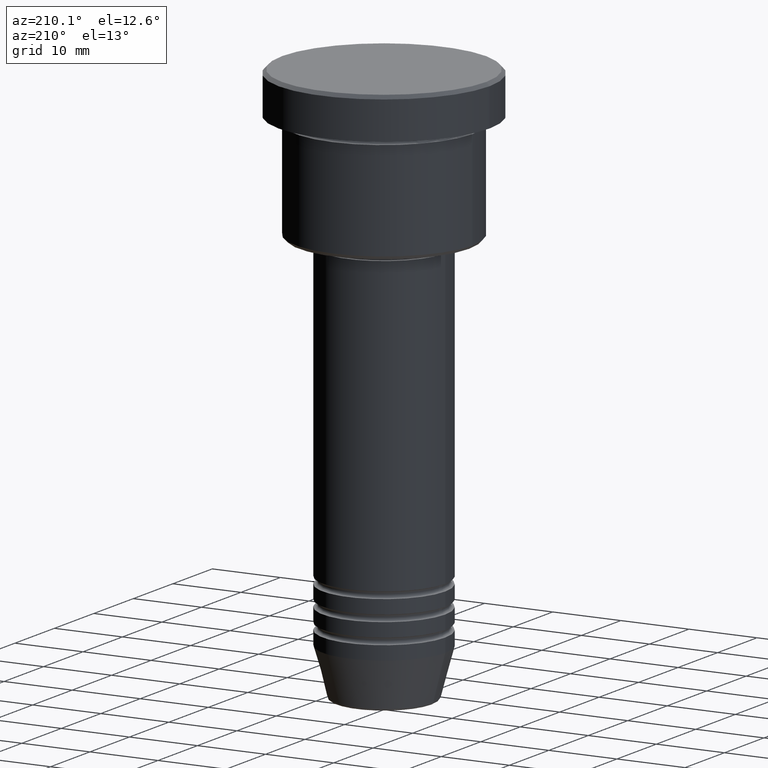
[diagram: clean part render]
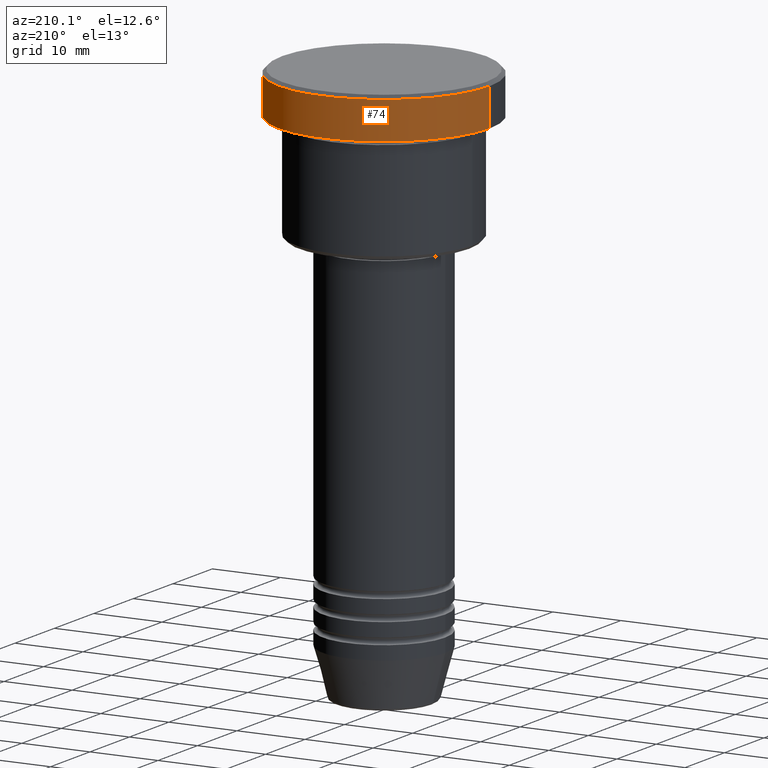
[diagram: same view with one face highlighted and labeled with its STEP entity id]
A machine part, auxiliary view. The second image highlights one B-rep face of the part: STEP entity #74.
In plain terms, the highlighted cylindrical surface (partial cylindrical patch) has radius 15.5 mm, axis along (-0, -0, 1).
Its self-contained STEP definition (entity closure, byte-faithful):
#70 = ORIENTED_EDGE ( 'NONE', *, *, #1023, .F. ) ;
#74 = ADVANCED_FACE ( 'NONE', ( #153 ), #815, .T. ) ;
#132 = DIRECTION ( 'NONE',  ( 1.000000000000000000, 0.000000000000000000, 0.000000000000000000 ) ) ;
#147 = DIRECTION ( 'NONE',  ( -0.000000000000000000, -0.000000000000000000, 1.000000000000000000 ) ) ;
#153 = FACE_OUTER_BOUND ( 'NONE', #754, .T. ) ;
#179 = VECTOR ( 'NONE', #649, 1000.000000000000000 ) ;
#221 = ORIENTED_EDGE ( 'NONE', *, *, #570, .T. ) ;
#284 = CARTESIAN_POINT ( 'NONE',  ( 15.50000000000000000, 0.000000000000000000, 0.000000000000000000 ) ) ;
#305 = DIRECTION ( 'NONE',  ( 1.000000000000000000, 0.000000000000000000, 0.000000000000000000 ) ) ;
#355 = CARTESIAN_POINT ( 'NONE',  ( 0.000000000000000000, 0.000000000000000000, 0.000000000000000000 ) ) ;
#389 = EDGE_CURVE ( 'NONE', #996, #762, #475, .T. ) ;
#475 = CIRCLE ( 'NONE', #534, 15.50000000000000000 ) ;
#500 = CARTESIAN_POINT ( 'NONE',  ( -15.50000000000000000, 1.898202538678397557E-15, 0.000000000000000000 ) ) ;
#517 = DIRECTION ( 'NONE',  ( -0.000000000000000000, -0.000000000000000000, 1.000000000000000000 ) ) ;
#534 = AXIS2_PLACEMENT_3D ( 'NONE', #616, #716, #907 ) ;
#552 = VERTEX_POINT ( 'NONE', #735 ) ;
#570 = EDGE_CURVE ( 'NONE', #1094, #552, #935, .T. ) ;
#616 = CARTESIAN_POINT ( 'NONE',  ( 0.000000000000000000, 0.000000000000000000, -0.4999999999999987232 ) ) ;
#649 = DIRECTION ( 'NONE',  ( -0.000000000000000000, -0.000000000000000000, 1.000000000000000000 ) ) ;
#662 = AXIS2_PLACEMENT_3D ( 'NONE', #355, #517, #305 ) ;
#663 = ORIENTED_EDGE ( 'NONE', *, *, #1062, .T. ) ;
#665 = AXIS2_PLACEMENT_3D ( 'NONE', #675, #1034, #132 ) ;
#666 = CARTESIAN_POINT ( 'NONE',  ( -15.50000000000000000, 1.898202538678397557E-15, -0.4999999999999987232 ) ) ;
#675 = CARTESIAN_POINT ( 'NONE',  ( 0.000000000000000000, 0.000000000000000000, -5.999999999999995559 ) ) ;
#716 = DIRECTION ( 'NONE',  ( 0.000000000000000000, 0.000000000000000000, -1.000000000000000000 ) ) ;
#735 = CARTESIAN_POINT ( 'NONE',  ( -15.50000000000000000, 1.898202538678397557E-15, -5.999999999999995559 ) ) ;
#754 = EDGE_LOOP ( 'NONE', ( #221, #663, #1050, #70 ) ) ;
#762 = VERTEX_POINT ( 'NONE', #820 ) ;
#815 = CYLINDRICAL_SURFACE ( 'NONE', #662, 15.50000000000000000 ) ;
#820 = CARTESIAN_POINT ( 'NONE',  ( 15.50000000000000000, 0.000000000000000000, -0.4999999999999987232 ) ) ;
#907 = DIRECTION ( 'NONE',  ( 1.000000000000000000, 0.000000000000000000, 0.000000000000000000 ) ) ;
#935 = CIRCLE ( 'NONE', #665, 15.50000000000000000 ) ;
#980 = LINE ( 'NONE', #500, #1137 ) ;
#996 = VERTEX_POINT ( 'NONE', #666 ) ;
#1023 = EDGE_CURVE ( 'NONE', #1094, #762, #1092, .T. ) ;
#1034 = DIRECTION ( 'NONE',  ( -0.000000000000000000, -0.000000000000000000, 1.000000000000000000 ) ) ;
#1050 = ORIENTED_EDGE ( 'NONE', *, *, #389, .T. ) ;
#1062 = EDGE_CURVE ( 'NONE', #552, #996, #980, .T. ) ;
#1092 = LINE ( 'NONE', #284, #179 ) ;
#1094 = VERTEX_POINT ( 'NONE', #1119 ) ;
#1119 = CARTESIAN_POINT ( 'NONE',  ( 15.50000000000000000, 0.000000000000000000, -5.999999999999995559 ) ) ;
#1137 = VECTOR ( 'NONE', #147, 1000.000000000000000 ) ;